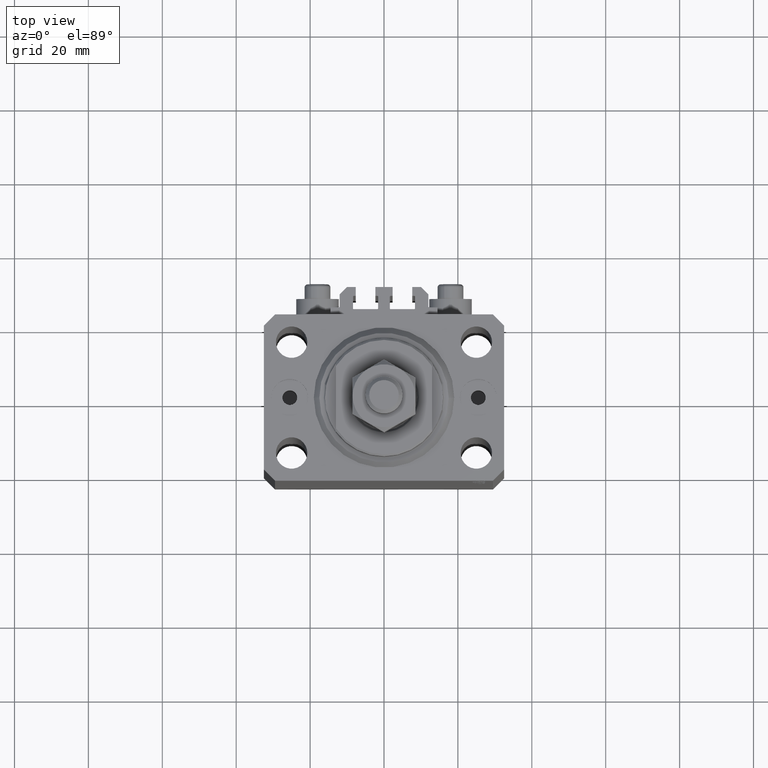
[diagram: clean part render]
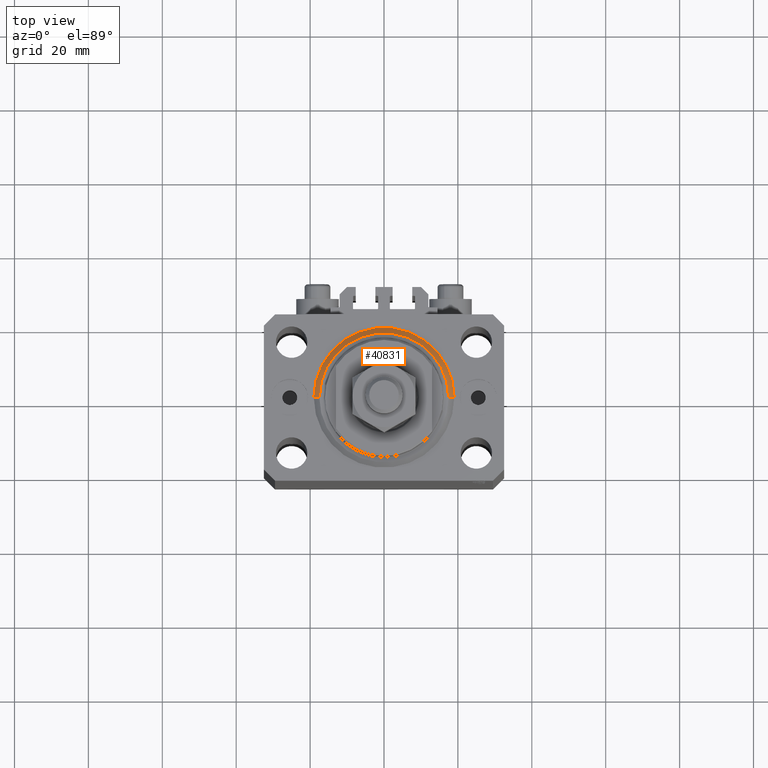
[diagram: same view with one face highlighted and labeled with its STEP entity id]
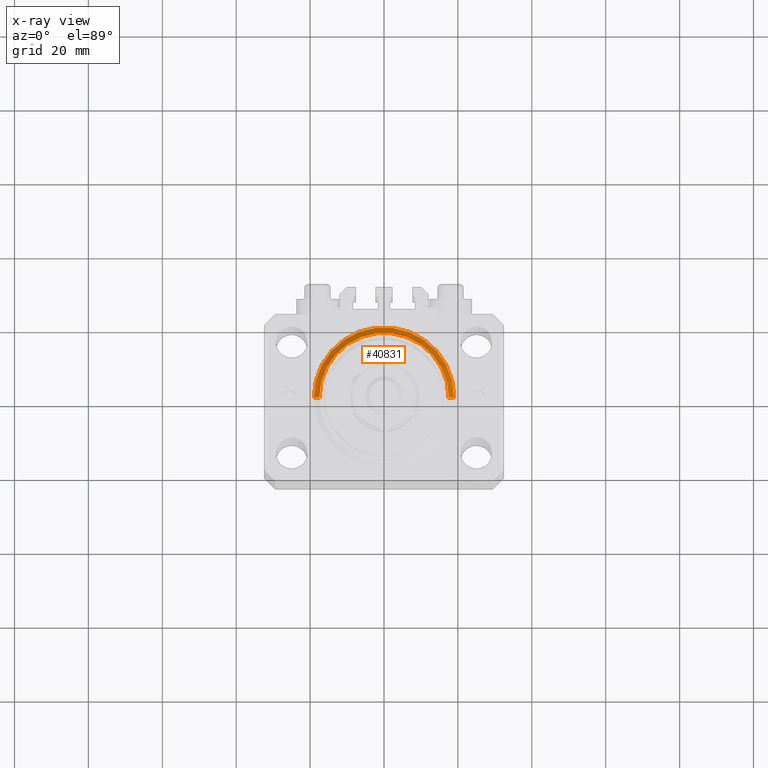
[diagram: x-ray of the same camera — body ghosted, the highlighted face saturated]
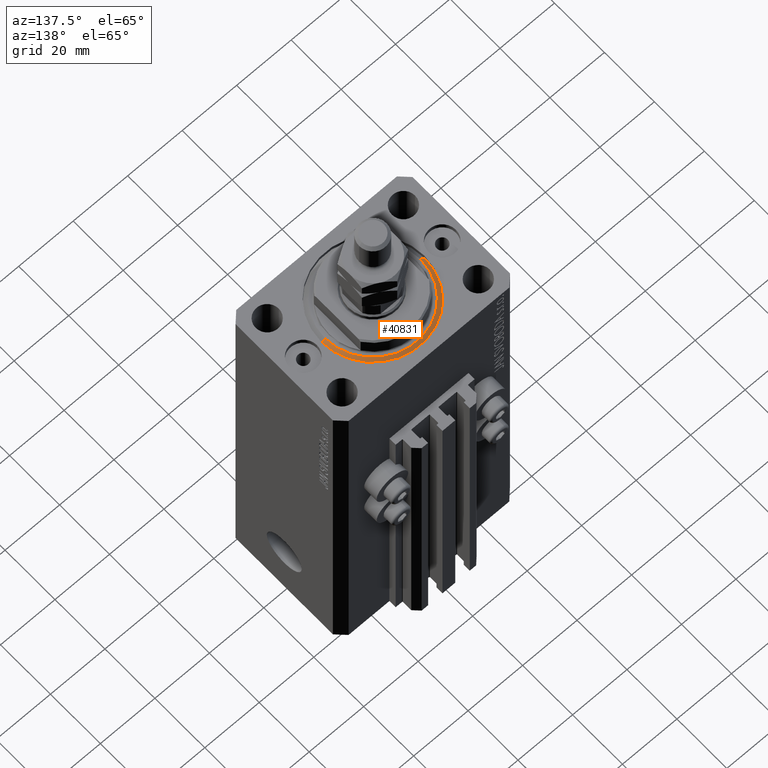
[diagram: same view with one face highlighted and labeled with its STEP entity id]
A machine part, top view. The second image highlights one B-rep face of the part: STEP entity #40831.
The next image is the same camera in x-ray: the body ghosted, the highlighted face saturated — about 0% of this face is hidden behind the body in this view.
A second angle (auxiliary view) of the same face is appended — the face is thin or edge-on in the first view.
In plain terms, the highlighted conical surface has half-angle 45 deg.
Its self-contained STEP definition (entity closure, byte-faithful):
#945 = VECTOR ( 'NONE', #3758, 1000.000000000000000 ) ;
#1034 = DIRECTION ( 'NONE',  ( -0.000000000000000000, -0.000000000000000000, 1.000000000000000000 ) ) ;
#1474 = AXIS2_PLACEMENT_3D ( 'NONE', #32431, #39328, #27485 ) ;
#2265 = EDGE_CURVE ( 'NONE', #43558, #40994, #37048, .T. ) ;
#3622 = CARTESIAN_POINT ( 'NONE',  ( 0.000000000000000000, 0.000000000000000000, 0.000000000000000000 ) ) ;
#3758 = DIRECTION ( 'NONE',  ( -0.7071067811865483499, 8.659560562354943952E-17, 0.7071067811865467956 ) ) ;
#3860 = DIRECTION ( 'NONE',  ( -0.000000000000000000, -0.000000000000000000, -1.000000000000000000 ) ) ;
#5423 = CARTESIAN_POINT ( 'NONE',  ( -19.00000000000000000, 0.000000000000000000, 1.500000000000004885 ) ) ;
#7137 = EDGE_CURVE ( 'NONE', #43558, #28079, #30870, .T. ) ;
#7339 = ORIENTED_EDGE ( 'NONE', *, *, #27300, .F. ) ;
#8985 = FACE_OUTER_BOUND ( 'NONE', #13475, .T. ) ;
#13475 = EDGE_LOOP ( 'NONE', ( #17428, #34080, #41596, #7339 ) ) ;
#15708 = VERTEX_POINT ( 'NONE', #20920 ) ;
#17428 = ORIENTED_EDGE ( 'NONE', *, *, #2265, .F. ) ;
#20920 = CARTESIAN_POINT ( 'NONE',  ( 19.00000000000000000, 2.326828918379970970E-15, 1.500000000000004885 ) ) ;
#21637 = DIRECTION ( 'NONE',  ( 1.000000000000000000, 0.000000000000000000, 0.000000000000000000 ) ) ;
#26225 = CARTESIAN_POINT ( 'NONE',  ( 17.49999999999999289, 0.000000000000000000, 0.000000000000000000 ) ) ;
#26921 = CARTESIAN_POINT ( 'NONE',  ( -19.00000000000000000, 2.326828918379970970E-15, 1.500000000000004885 ) ) ;
#27300 = EDGE_CURVE ( 'NONE', #40994, #15708, #40549, .T. ) ;
#27413 = CARTESIAN_POINT ( 'NONE',  ( 0.000000000000000000, 0.000000000000000000, 1.500000000000004885 ) ) ;
#27485 = DIRECTION ( 'NONE',  ( 1.000000000000000000, 0.000000000000000000, 0.000000000000000000 ) ) ;
#28079 = VERTEX_POINT ( 'NONE', #5423 ) ;
#28723 = DIRECTION ( 'NONE',  ( 0.7071067811865483499, 0.000000000000000000, 0.7071067811865467956 ) ) ;
#28986 = CARTESIAN_POINT ( 'NONE',  ( -17.49999999999999289, 2.234980408443919215E-15, 0.000000000000000000 ) ) ;
#29115 = AXIS2_PLACEMENT_3D ( 'NONE', #27413, #1034, #35308 ) ;
#30870 = LINE ( 'NONE', #26921, #945 ) ;
#32431 = CARTESIAN_POINT ( 'NONE',  ( 0.000000000000000000, 0.000000000000000000, 1.500000000000004885 ) ) ;
#32924 = CARTESIAN_POINT ( 'NONE',  ( 19.00000000000000000, 0.000000000000000000, 1.500000000000004885 ) ) ;
#34080 = ORIENTED_EDGE ( 'NONE', *, *, #7137, .T. ) ;
#35308 = DIRECTION ( 'NONE',  ( 1.000000000000000000, 0.000000000000000000, 0.000000000000000000 ) ) ;
#37002 = CIRCLE ( 'NONE', #29115, 19.00000000000000000 ) ;
#37048 = CIRCLE ( 'NONE', #38584, 17.49999999999999289 ) ;
#38584 = AXIS2_PLACEMENT_3D ( 'NONE', #3622, #3860, #21637 ) ;
#39328 = DIRECTION ( 'NONE',  ( -0.000000000000000000, -0.000000000000000000, 1.000000000000000000 ) ) ;
#40549 = LINE ( 'NONE', #32924, #40606 ) ;
#40606 = VECTOR ( 'NONE', #28723, 1000.000000000000000 ) ;
#40831 = ADVANCED_FACE ( 'NONE', ( #8985 ), #40868, .T. ) ;
#40868 = CONICAL_SURFACE ( 'NONE', #1474, 19.00000000000000000, 0.7853981633974492782 ) ;
#40994 = VERTEX_POINT ( 'NONE', #26225 ) ;
#41596 = ORIENTED_EDGE ( 'NONE', *, *, #46058, .F. ) ;
#43558 = VERTEX_POINT ( 'NONE', #28986 ) ;
#46058 = EDGE_CURVE ( 'NONE', #15708, #28079, #37002, .T. ) ;